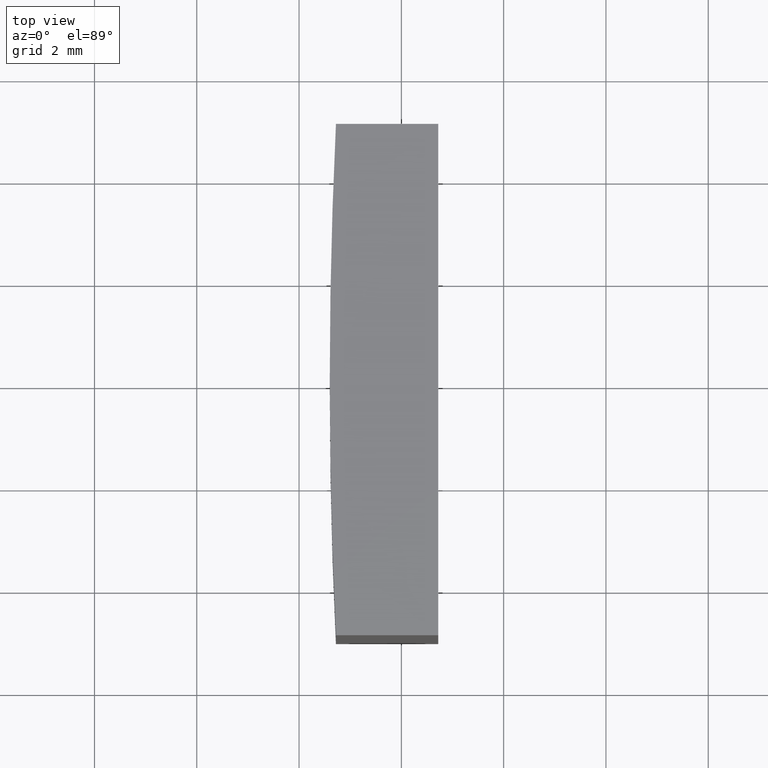
[diagram: clean part render]
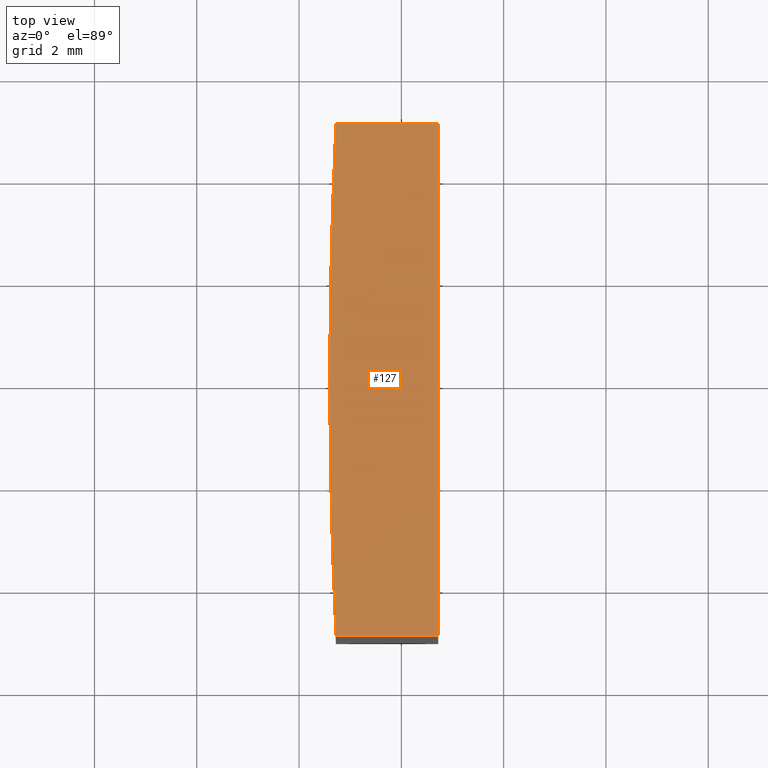
[diagram: same view with one face highlighted and labeled with its STEP entity id]
A machine part, top view. The second image highlights one B-rep face of the part: STEP entity #127.
In plain terms, the highlighted planar face has unit normal (0, 0, 1).
Its self-contained STEP definition (entity closure, byte-faithful):
#2 = AXIS2_PLACEMENT_3D ( 'NONE', #149, #51, #48 ) ;
#4 = FACE_OUTER_BOUND ( 'NONE', #53, .T. ) ;
#18 = ORIENTED_EDGE ( 'NONE', *, *, #109, .T. ) ;
#21 = VECTOR ( 'NONE', #257, 1000.000000000000000 ) ;
#22 = EDGE_CURVE ( 'NONE', #153, #134, #55, .T. ) ;
#31 = AXIS2_PLACEMENT_3D ( 'NONE', #124, #63, #126 ) ;
#42 = LINE ( 'NONE', #167, #21 ) ;
#44 = EDGE_CURVE ( 'NONE', #220, #153, #227, .T. ) ;
#48 = DIRECTION ( 'NONE',  ( 1.000000000000000000, 0.000000000000000000, -0.000000000000000000 ) ) ;
#51 = DIRECTION ( 'NONE',  ( 0.000000000000000000, 0.000000000000000000, 1.000000000000000000 ) ) ;
#53 = EDGE_LOOP ( 'NONE', ( #116, #246, #112, #161, #18 ) ) ;
#55 = CIRCLE ( 'NONE', #31, 103.4000000000000057 ) ;
#57 = VERTEX_POINT ( 'NONE', #225 ) ;
#61 = VERTEX_POINT ( 'NONE', #87 ) ;
#62 = CARTESIAN_POINT ( 'NONE',  ( -103.2790394997939529, -5.000000000000000888, 10.00000000000000000 ) ) ;
#63 = DIRECTION ( 'NONE',  ( 0.000000000000000000, 0.000000000000000000, 1.000000000000000000 ) ) ;
#65 = LINE ( 'NONE', #123, #206 ) ;
#87 = CARTESIAN_POINT ( 'NONE',  ( -101.2790394997939529, 5.000000000000000888, 10.00000000000000000 ) ) ;
#90 = CARTESIAN_POINT ( 'NONE',  ( -103.2790394997939529, -5.000000000000000888, 10.00000000000000000 ) ) ;
#109 = EDGE_CURVE ( 'NONE', #61, #220, #42, .T. ) ;
#112 = ORIENTED_EDGE ( 'NONE', *, *, #130, .T. ) ;
#116 = ORIENTED_EDGE ( 'NONE', *, *, #44, .T. ) ;
#123 = CARTESIAN_POINT ( 'NONE',  ( -101.2790394997939529, 5.000000000000000888, 10.00000000000000000 ) ) ;
#124 = CARTESIAN_POINT ( 'NONE',  ( 0.000000000000000000, 0.000000000000000000, 10.00000000000000000 ) ) ;
#126 = DIRECTION ( 'NONE',  ( 1.000000000000000000, 0.000000000000000000, 0.000000000000000000 ) ) ;
#127 = ADVANCED_FACE ( 'NONE', ( #4 ), #234, .T. ) ;
#128 = VECTOR ( 'NONE', #223, 1000.000000000000000 ) ;
#130 = EDGE_CURVE ( 'NONE', #134, #57, #258, .T. ) ;
#134 = VERTEX_POINT ( 'NONE', #62 ) ;
#142 = CARTESIAN_POINT ( 'NONE',  ( -103.4000000000000057, 0.000000000000000000, 10.00000000000000000 ) ) ;
#149 = CARTESIAN_POINT ( 'NONE',  ( 0.000000000000000000, 0.000000000000000000, 10.00000000000000000 ) ) ;
#153 = VERTEX_POINT ( 'NONE', #142 ) ;
#161 = ORIENTED_EDGE ( 'NONE', *, *, #255, .T. ) ;
#165 = DIRECTION ( 'NONE',  ( 1.000000000000000000, 0.000000000000000000, 0.000000000000000000 ) ) ;
#166 = DIRECTION ( 'NONE',  ( -0.000000000000000000, 1.000000000000000000, -0.000000000000000000 ) ) ;
#167 = CARTESIAN_POINT ( 'NONE',  ( -103.2790394997939529, 5.000000000000000888, 10.00000000000000000 ) ) ;
#181 = DIRECTION ( 'NONE',  ( 0.000000000000000000, 0.000000000000000000, 1.000000000000000000 ) ) ;
#201 = CARTESIAN_POINT ( 'NONE',  ( 0.000000000000000000, 0.000000000000000000, 10.00000000000000000 ) ) ;
#206 = VECTOR ( 'NONE', #166, 1000.000000000000000 ) ;
#215 = AXIS2_PLACEMENT_3D ( 'NONE', #201, #181, #165 ) ;
#220 = VERTEX_POINT ( 'NONE', #224 ) ;
#223 = DIRECTION ( 'NONE',  ( 1.000000000000000000, 0.000000000000000000, 0.000000000000000000 ) ) ;
#224 = CARTESIAN_POINT ( 'NONE',  ( -103.2790394997939529, 5.000000000000000888, 10.00000000000000000 ) ) ;
#225 = CARTESIAN_POINT ( 'NONE',  ( -101.2790394997939529, -5.000000000000000888, 10.00000000000000000 ) ) ;
#227 = CIRCLE ( 'NONE', #215, 103.4000000000000057 ) ;
#234 = PLANE ( 'NONE',  #2 ) ;
#246 = ORIENTED_EDGE ( 'NONE', *, *, #22, .T. ) ;
#255 = EDGE_CURVE ( 'NONE', #57, #61, #65, .T. ) ;
#257 = DIRECTION ( 'NONE',  ( -1.000000000000000000, -0.000000000000000000, -0.000000000000000000 ) ) ;
#258 = LINE ( 'NONE', #90, #128 ) ;